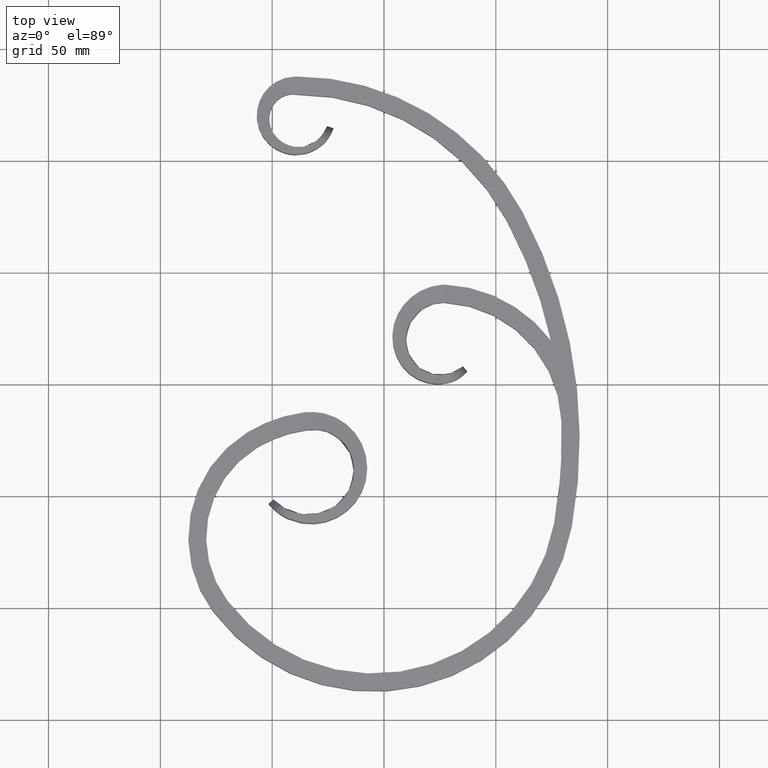
[diagram: clean part render]
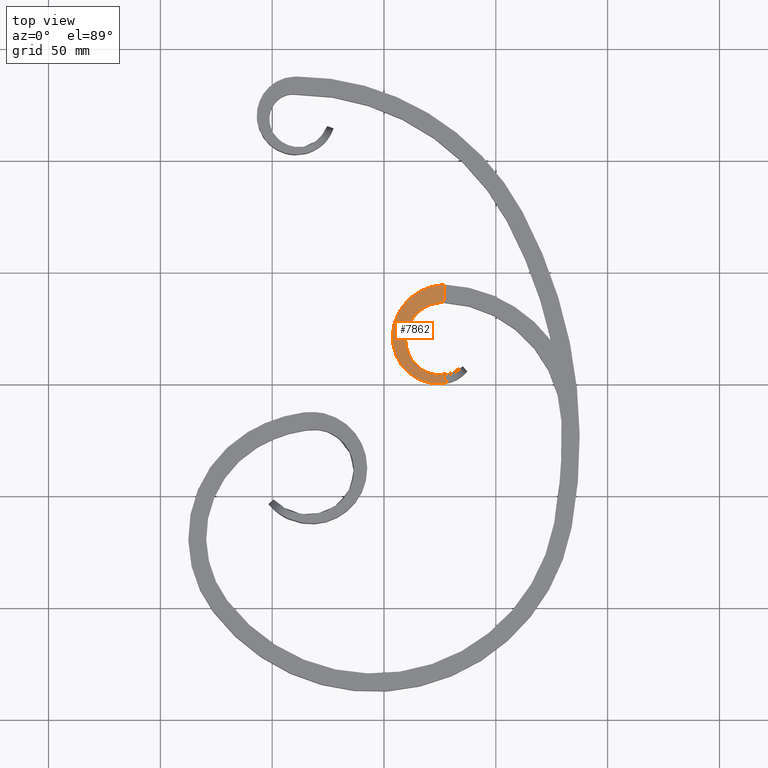
[diagram: same view with one face highlighted and labeled with its STEP entity id]
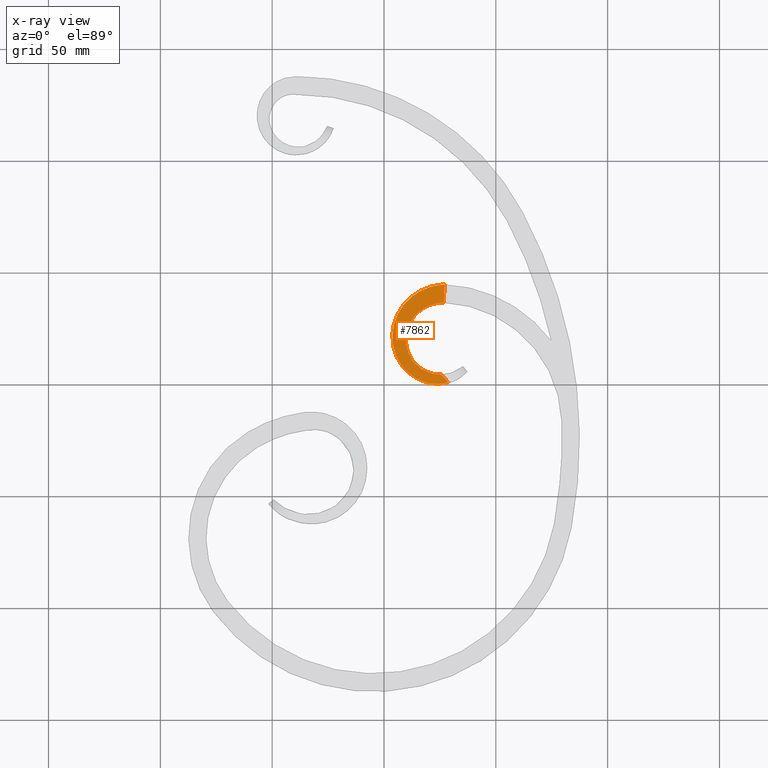
[diagram: x-ray of the same camera — body ghosted, the highlighted face saturated]
A machine part, top view. The second image highlights one B-rep face of the part: STEP entity #7862.
The next image is the same camera in x-ray: the body ghosted, the highlighted face saturated — about 0% of this face is hidden behind the body in this view.
In plain terms, the highlighted face is a freeform B-spline surface patch.
Its self-contained STEP definition (entity closure, byte-faithful):
#16 = CARTESIAN_POINT ( 'NONE',  ( 37.22033221326324082, 5.590170437823054783, 15.00000000000000178 ) ) ;
#200 = VERTEX_POINT ( 'NONE', #5748 ) ;
#246 = CARTESIAN_POINT ( 'NONE',  ( 15.13078337890523706, 7.546122893054913128, 12.37092428156234547 ) ) ;
#355 = CARTESIAN_POINT ( 'NONE',  ( 11.75512122916627789, 3.958474428809715118, 12.37092428156234547 ) ) ;
#489 = CARTESIAN_POINT ( 'NONE',  ( 9.667908342587423931, 21.59770068822422218, 10.62120285106776585 ) ) ;
#585 = CARTESIAN_POINT ( 'NONE',  ( 12.54725568843597827, 10.39081207838845522, 11.93343698061571523 ) ) ;
#700 = EDGE_LOOP ( 'NONE', ( #6490, #11174, #7786, #3953 ) ) ;
#1042 = VECTOR ( 'NONE', #13413, 1000.000000000000000 ) ;
#1206 = CARTESIAN_POINT ( 'NONE',  ( 18.29325803372649162, 5.444850745869172393, 12.80828091008404002 ) ) ;
#1362 = CARTESIAN_POINT ( 'NONE',  ( 24.99528694162631481, -0.1628278772959871334, 13.64500015609327654 ) ) ;
#1370 = CARTESIAN_POINT ( 'NONE',  ( 25.78330554643003936, 3.954459174067366689, 13.71746933544295644 ) ) ;
#1388 = CARTESIAN_POINT ( 'NONE',  ( 10.66592038474908577, 37.74728596001798309, 9.308814439242121708 ) ) ;
#1455 = CARTESIAN_POINT ( 'NONE',  ( 10.66592038474908577, 37.74728596001798309, 9.308814439242121708 ) ) ;
#1629 = CARTESIAN_POINT ( 'NONE',  ( 26.73374988721644385, 36.44922191225008845, 8.000000000000000000 ) ) ;
#1743 = EDGE_CURVE ( 'NONE', #6684, #12861, #2825, .T. ) ;
#2199 = CARTESIAN_POINT ( 'NONE',  ( 36.15546560526867381, 4.612877935209207969, 14.85353915889456289 ) ) ;
#2245 = CARTESIAN_POINT ( 'NONE',  ( 3.862961158993187372, 17.10745325755428681, 11.05858051246567442 ) ) ;
#2341 = CARTESIAN_POINT ( 'NONE',  ( 29.12400710345751875, 4.316759878174341480, 14.12068485025806197 ) ) ;
#2392 = CARTESIAN_POINT ( 'NONE',  ( 3.554621046289598851, 22.55754048119759503, 10.62120285106776940 ) ) ;
#2486 = CARTESIAN_POINT ( 'NONE',  ( 10.69040183021463086, 13.80702418205067161, 11.49606797354414844 ) ) ;
#2664 = CARTESIAN_POINT ( 'NONE',  ( 10.60682834753888848, 25.51292563552295434, 10.18371278007313130 ) ) ;
#2825 = LINE ( 'NONE', #13464, #1042 ) ;
#3160 = CARTESIAN_POINT ( 'NONE',  ( 29.91110519190275951, 0.7395930247836864924, 14.12068485025806197 ) ) ;
#3354 = CARTESIAN_POINT ( 'NONE',  ( 26.73374988721644385, 36.44922191225008845, 8.000000000000000000 ) ) ;
#3402 = CARTESIAN_POINT ( 'NONE',  ( 15.40397723597705415, 41.31865686062663201, 8.871557672142865059 ) ) ;
#3611 = CARTESIAN_POINT ( 'NONE',  ( 27.73479760770786839, 1.695943238224755234, 13.92936396046801306 ) ) ;
#3646 = CARTESIAN_POINT ( 'NONE',  ( 18.60197042925955557, 34.59563317462231424, 8.871557672142865059 ) ) ;
#3777 = CARTESIAN_POINT ( 'NONE',  ( 27.07743565531056262, 44.44183600857737559, 8.000000000000003553 ) ) ;
#3953 = ORIENTED_EDGE ( 'NONE', *, *, #1743, .F. ) ;
#4379 = CARTESIAN_POINT ( 'NONE',  ( 35.29196938420363239, 7.888303767180000925, 15.00000000000000178 ) ) ;
#4472 = CARTESIAN_POINT ( 'NONE',  ( 10.60682834753888848, 25.51292563552295434, 10.18371278007313130 ) ) ;
#4584 = CARTESIAN_POINT ( 'NONE',  ( 5.433103178311593062, 12.00632863816656126, 11.49606797354415200 ) ) ;
#4626 = CARTESIAN_POINT ( 'NONE',  ( 21.82018549640629601, 4.169771242662684507, 13.24577625437033213 ) ) ;
#4675 = CARTESIAN_POINT ( 'NONE',  ( 28.71854924418006760, 0.5713749710956834704, 14.00754869379108314 ) ) ;
#4720 = CARTESIAN_POINT ( 'NONE',  ( 4.612914845087622950, 28.03732912619253881, 10.18371278007313663 ) ) ;
#5115 = FACE_OUTER_BOUND ( 'NONE', #700, .T. ) ;
#5345 = CARTESIAN_POINT ( 'NONE',  ( 16.03442723539270531, 1.425504875784244119, 12.80828091008404179 ) ) ;
#5484 = CARTESIAN_POINT ( 'NONE',  ( 9.713405128764810215, 17.61821078299109544, 11.05858051246567264 ) ) ;
#5515 = CARTESIAN_POINT ( 'NONE',  ( 26.75231203214713460, 2.820602010034482632, 13.83561719879521945 ) ) ;
#5582 = CARTESIAN_POINT ( 'NONE',  ( 4.612914845087626503, 28.03732912619253881, 10.18371278007313663 ) ) ;
#5634 = B_SPLINE_SURFACE_WITH_KNOTS ( 'NONE', 1, 3, ( 
 ( #16, #2199, #6359, #3160, #12659, #7414, #5345, #7461, #7564, #8674, #2245, #2392, #5582, #8573, #1388, #3402, #9627, #12849, #10689 ),
 ( #4379, #8719, #12940, #2341, #6636, #8757, #1206, #246, #7609, #9725, #5484, #10732, #4472, #6543, #9675, #11740, #12892, #6447, #3354 ) ),
 .UNSPECIFIED., .F., .F., .F.,
 ( 2, 2 ),
 ( 4, 1, 1, 1, 1, 1, 1, 1, 1, 1, 1, 1, 1, 1, 1, 1, 4 ),
 ( 0.000000000000000000, 1.000000000000000000 ),
 ( 0.000000000000000000, 0.05402095406004646383, 0.1091653902257552211, 0.1654394321501309884, 0.2228489799331400123, 0.2813836415440449379, 0.3410543708443595223, 0.4018511583633530559, 0.4637844961370607977, 0.5268447249825298773, 0.5910419208465055307, 0.6563667560829635761, 0.7228289203624094217, 0.7904193941908927989, 0.8591475130256226445, 0.9289973471855372811, 1.000000000000000000 ),
 .UNSPECIFIED. ) ;
#5734 = CARTESIAN_POINT ( 'NONE',  ( 25.78330554643003936, 3.954459174067366689, 13.71746933544295644 ) ) ;
#5748 = CARTESIAN_POINT ( 'NONE',  ( 28.71854924418006760, 0.5713749710956834704, 14.00754869379108314 ) ) ;
#6359 = CARTESIAN_POINT ( 'NONE',  ( 34.00358619434802421, 2.637968027213892341, 14.55757150800309141 ) ) ;
#6447 = CARTESIAN_POINT ( 'NONE',  ( 25.32757362979406324, 36.34805380304973710, 8.145320488821543137 ) ) ;
#6490 = ORIENTED_EDGE ( 'NONE', *, *, #11564, .F. ) ;
#6543 = CARTESIAN_POINT ( 'NONE',  ( 12.46867457219860142, 29.13265669848604489, 9.746334742647444926 ) ) ;
#6636 = CARTESIAN_POINT ( 'NONE',  ( 25.50936399416579192, 3.797268573142966286, 13.68309002773037442 ) ) ;
#6656 = CARTESIAN_POINT ( 'NONE',  ( 16.03442723539270531, 1.425504875784246561, 12.80828091008404179 ) ) ;
#6684 = VERTEX_POINT ( 'NONE', #3777 ) ;
#6739 = CARTESIAN_POINT ( 'NONE',  ( 3.554621046289598851, 22.55754048119759503, 10.62120285106776940 ) ) ;
#6750 = B_SPLINE_CURVE_WITH_KNOTS ( 'NONE', 3,
 ( #9695, #12959, #1362, #11814, #6656, #355, #10886, #4584, #11950, #6739, #4720, #8957, #1455, #8864, #13146, #7804, #7896 ),
 .UNSPECIFIED., .F., .F.,
 ( 4, 1, 1, 1, 1, 1, 1, 1, 1, 1, 1, 1, 1, 1, 4 ),
 ( 0.1241655376848159881, 0.1654394321501309884, 0.2228489799331400123, 0.2813836415440449379, 0.3410543708443595223, 0.4018511583633530559, 0.4637844961370607977, 0.5268447249825298773, 0.5910419208465055307, 0.6563667560829635761, 0.7228289203624094217, 0.7904193941908927989, 0.8591475130256226445, 0.9289973471855372811, 1.000000000000000000 ),
 .UNSPECIFIED. ) ;
#6783 = CARTESIAN_POINT ( 'NONE',  ( 15.13078337890523706, 7.546122893054913128, 12.37092428156234547 ) ) ;
#6882 = CARTESIAN_POINT ( 'NONE',  ( 24.38722984451856135, 3.910572379547749389, 13.55007268538805576 ) ) ;
#7229 = EDGE_CURVE ( 'NONE', #200, #10984, #13355, .T. ) ;
#7414 = CARTESIAN_POINT ( 'NONE',  ( 20.67869700288297707, 0.02919099199571208517, 13.24577625437033213 ) ) ;
#7461 = CARTESIAN_POINT ( 'NONE',  ( 11.75512122916627789, 3.958474428809715118, 12.37092428156234547 ) ) ;
#7537 = CARTESIAN_POINT ( 'NONE',  ( 26.73374988721644385, 36.44922191225008845, 8.000000000000000000 ) ) ;
#7564 = CARTESIAN_POINT ( 'NONE',  ( 8.142434049966993825, 7.549627970724119841, 11.93343698061571878 ) ) ;
#7609 = CARTESIAN_POINT ( 'NONE',  ( 12.54725568843597827, 10.39081207838845522, 11.93343698061571523 ) ) ;
#7786 = ORIENTED_EDGE ( 'NONE', *, *, #11645, .T. ) ;
#7804 = CARTESIAN_POINT ( 'NONE',  ( 25.03490703536721540, 44.21928495015247762, 8.145320488821546689 ) ) ;
#7862 = ADVANCED_FACE ( 'NONE', ( #5115 ), #5634, .T. ) ;
#7896 = CARTESIAN_POINT ( 'NONE',  ( 27.07743565531056262, 44.44183600857737559, 8.000000000000003553 ) ) ;
#7937 = CARTESIAN_POINT ( 'NONE',  ( 9.713405128764810215, 17.61821078299109544, 11.05858051246567264 ) ) ;
#8573 = CARTESIAN_POINT ( 'NONE',  ( 7.004723055171983681, 33.21231346460943712, 9.746334742647444926 ) ) ;
#8674 = CARTESIAN_POINT ( 'NONE',  ( 5.433103178311591286, 12.00632863816656659, 11.49606797354415200 ) ) ;
#8719 = CARTESIAN_POINT ( 'NONE',  ( 34.36935742805131611, 7.144050420354621345, 14.85353915889456289 ) ) ;
#8757 = CARTESIAN_POINT ( 'NONE',  ( 21.82018549640629601, 4.169771242662684507, 13.24577625437033213 ) ) ;
#8864 = CARTESIAN_POINT ( 'NONE',  ( 15.40397723597705415, 41.31865686062663201, 8.871557672142865059 ) ) ;
#8873 = B_SPLINE_CURVE_WITH_KNOTS ( 'NONE', 3,
 ( #5734, #13242, #6882, #4626, #13096, #6783, #585, #2486, #7937, #489, #2664, #8909, #9881, #3646, #10927, #11018, #1629 ),
 .UNSPECIFIED., .F., .F.,
 ( 4, 1, 1, 1, 1, 1, 1, 1, 1, 1, 1, 1, 1, 1, 4 ),
 ( 0.1615488628915932590, 0.1654394321501309884, 0.2228489799331400123, 0.2813836415440449379, 0.3410543708443595223, 0.4018511583633530559, 0.4637844961370607977, 0.5268447249825298773, 0.5910419208465055307, 0.6563667560829635761, 0.7228289203624094217, 0.7904193941908927989, 0.8591475130256227555, 0.9289973471855372811, 1.000000000000000000 ),
 .UNSPECIFIED. ) ;
#8909 = CARTESIAN_POINT ( 'NONE',  ( 12.46867457219860142, 29.13265669848604489, 9.746334742647444926 ) ) ;
#8957 = CARTESIAN_POINT ( 'NONE',  ( 7.004723055171985457, 33.21231346460943712, 9.746334742647444926 ) ) ;
#8994 = CARTESIAN_POINT ( 'NONE',  ( 25.78330554643003936, 3.954459174067366689, 13.71746933544295644 ) ) ;
#9627 = CARTESIAN_POINT ( 'NONE',  ( 20.98301285350981615, 43.77779623366976836, 8.433602002926861019 ) ) ;
#9675 = CARTESIAN_POINT ( 'NONE',  ( 15.18895491604005166, 32.22764516696799575, 9.308814439242116379 ) ) ;
#9695 = CARTESIAN_POINT ( 'NONE',  ( 28.71854924418006760, 0.5713749710956834704, 14.00754869379108314 ) ) ;
#9725 = CARTESIAN_POINT ( 'NONE',  ( 10.69040183021463086, 13.80702418205067161, 11.49606797354414844 ) ) ;
#9881 = CARTESIAN_POINT ( 'NONE',  ( 15.18895491604005166, 32.22764516696799575, 9.308814439242116379 ) ) ;
#10689 = CARTESIAN_POINT ( 'NONE',  ( 27.07743565531056262, 44.44183600857737559, 8.000000000000003553 ) ) ;
#10732 = CARTESIAN_POINT ( 'NONE',  ( 9.667908342587423931, 21.59770068822422218, 10.62120285106776585 ) ) ;
#10886 = CARTESIAN_POINT ( 'NONE',  ( 8.142434049966993825, 7.549627970724119841, 11.93343698061571878 ) ) ;
#10927 = CARTESIAN_POINT ( 'NONE',  ( 22.53805218050645820, 36.14736017797348921, 8.433602002926853913 ) ) ;
#10984 = VERTEX_POINT ( 'NONE', #8994 ) ;
#11018 = CARTESIAN_POINT ( 'NONE',  ( 25.32757362979406324, 36.34805380304973710, 8.145320488821543137 ) ) ;
#11174 = ORIENTED_EDGE ( 'NONE', *, *, #7229, .T. ) ;
#11564 = EDGE_CURVE ( 'NONE', #200, #6684, #6750, .T. ) ;
#11645 = EDGE_CURVE ( 'NONE', #10984, #12861, #8873, .T. ) ;
#11740 = CARTESIAN_POINT ( 'NONE',  ( 18.60197042925955557, 34.59563317462231424, 8.871557672142865059 ) ) ;
#11814 = CARTESIAN_POINT ( 'NONE',  ( 20.67869700288297707, 0.02919099199571116923, 13.24577625437033213 ) ) ;
#11950 = CARTESIAN_POINT ( 'NONE',  ( 3.862961158993187372, 17.10745325755428681, 11.05858051246567442 ) ) ;
#12659 = CARTESIAN_POINT ( 'NONE',  ( 25.40713191375130720, -0.1811483587392512806, 13.68309002773037442 ) ) ;
#12849 = CARTESIAN_POINT ( 'NONE',  ( 25.03490703536721540, 44.21928495015247762, 8.145320488821546689 ) ) ;
#12861 = VERTEX_POINT ( 'NONE', #7537 ) ;
#12892 = CARTESIAN_POINT ( 'NONE',  ( 22.53805218050645820, 36.14736017797348921, 8.433602002926853913 ) ) ;
#12940 = CARTESIAN_POINT ( 'NONE',  ( 32.50494581272951677, 5.640065375168117789, 14.55757150800309141 ) ) ;
#12959 = CARTESIAN_POINT ( 'NONE',  ( 27.63808434810390224, 0.2884486200113784427, 13.90009766775478894 ) ) ;
#13096 = CARTESIAN_POINT ( 'NONE',  ( 18.29325803372649162, 5.444850745869172393, 12.80828091008404002 ) ) ;
#13146 = CARTESIAN_POINT ( 'NONE',  ( 20.98301285350981615, 43.77779623366976836, 8.433602002926861019 ) ) ;
#13242 = CARTESIAN_POINT ( 'NONE',  ( 25.69999790457981703, 3.951185857289732706, 13.70747256350938947 ) ) ;
#13355 = B_SPLINE_CURVE_WITH_KNOTS ( 'NONE', 3,
 ( #4675, #3611, #5515, #1370 ),
 .UNSPECIFIED., .F., .F.,
 ( 4, 4 ),
 ( 6.254634441385501517E-18, 0.004488518137184490699 ),
 .UNSPECIFIED. ) ;
#13413 = DIRECTION ( 'NONE',  ( -0.04296072101176488106, -0.9990767620409101157, -4.336808689942013792E-16 ) ) ;
#13464 = CARTESIAN_POINT ( 'NONE',  ( 27.07743565531056262, 44.44183600857737559, 8.000000000000003553 ) ) ;